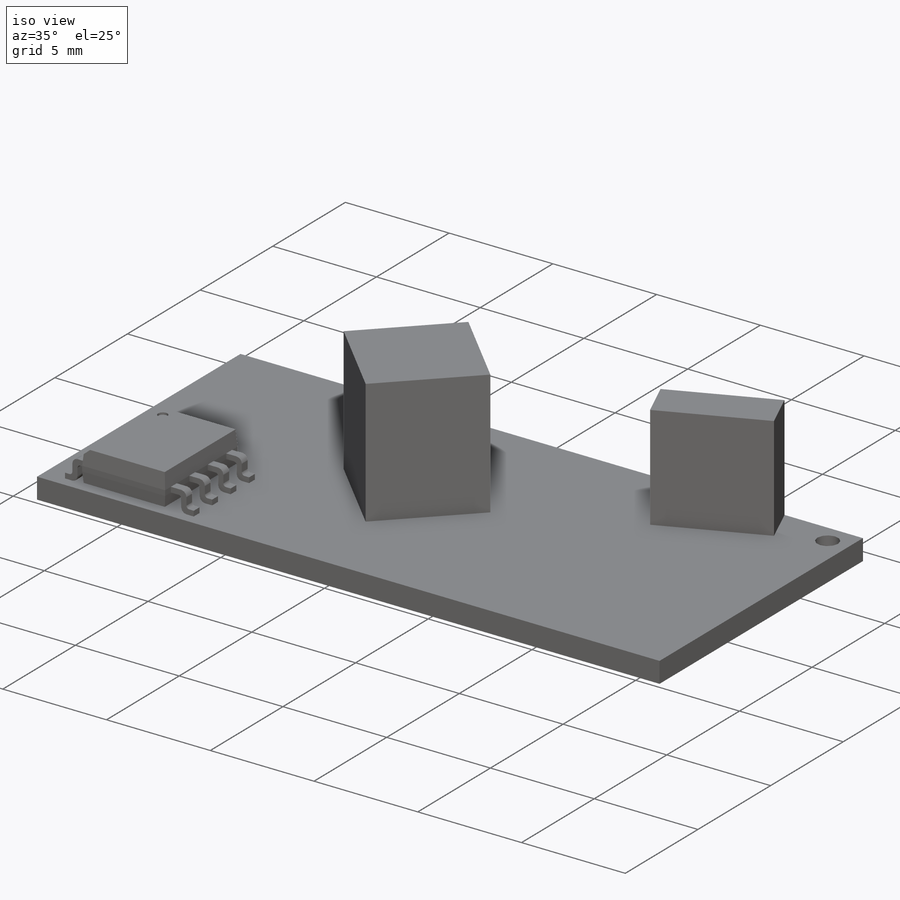
[diagram: iso view]
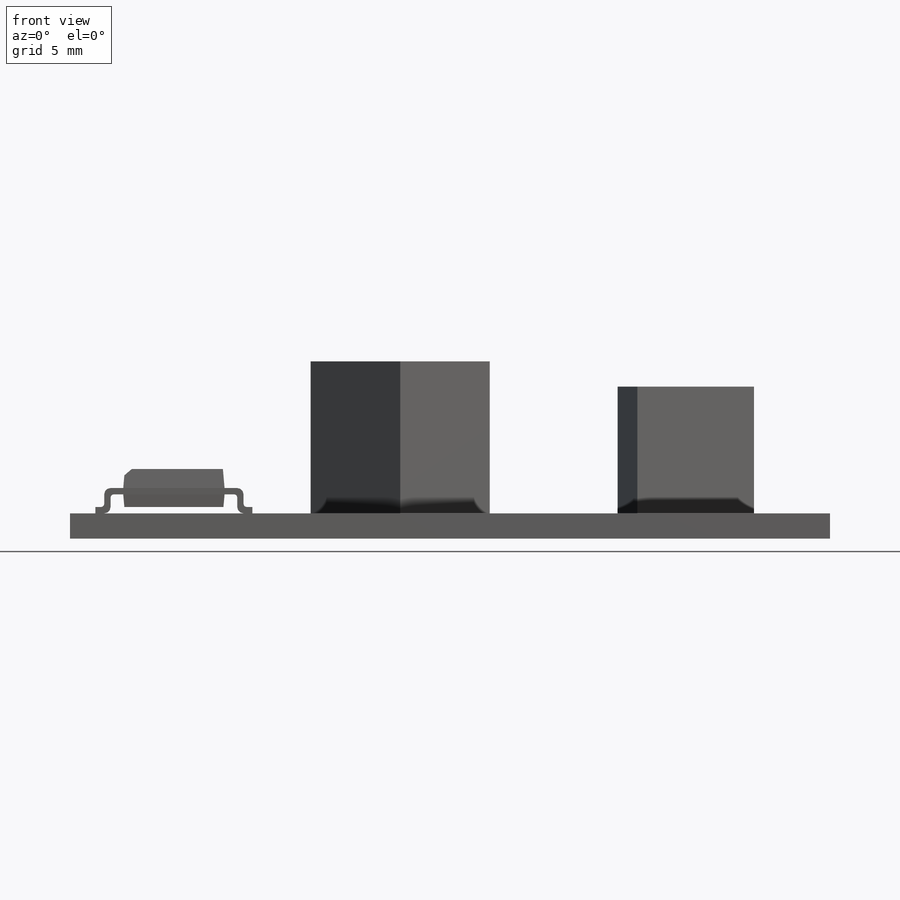
[diagram: front view]
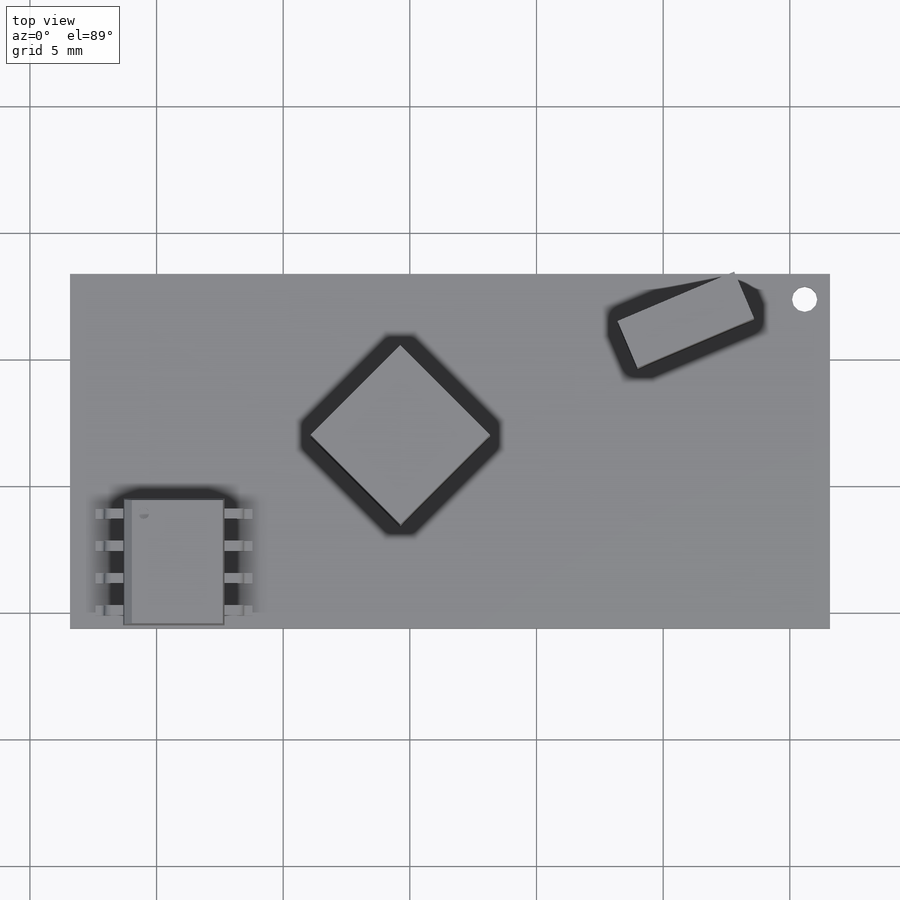
[diagram: top view]
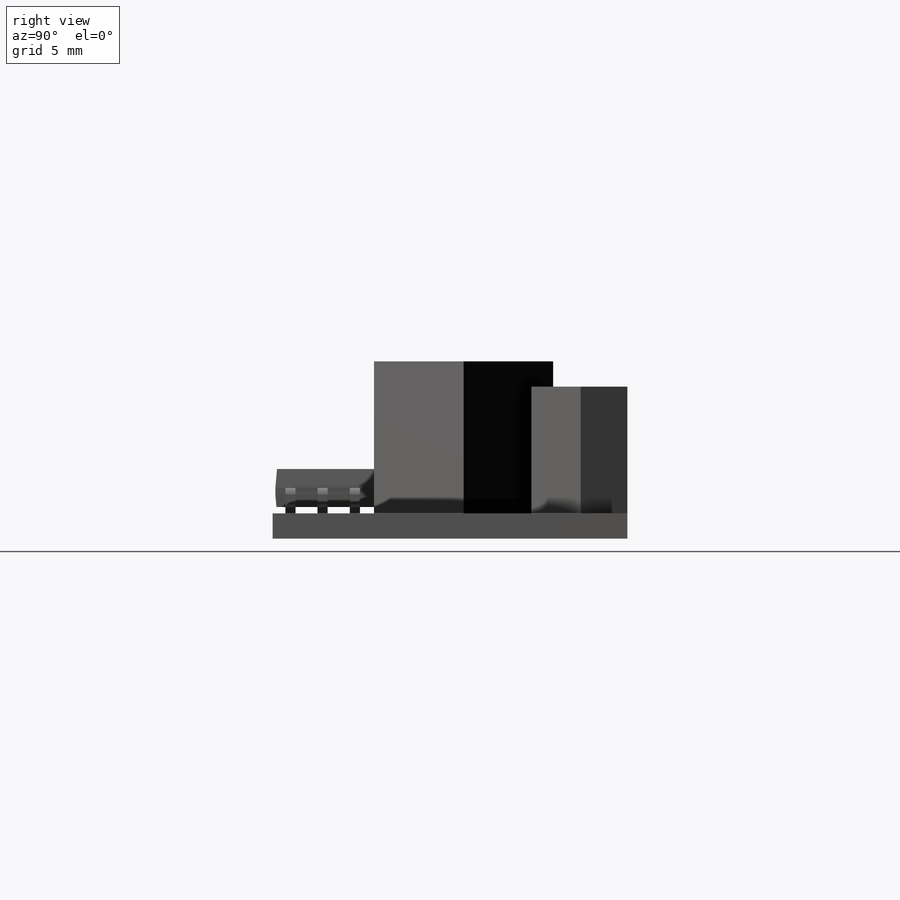
[diagram: right view]
SOLIDWORKS PART (.sldprt)
format: sldprt  version: not decoded by parser v0  size: 413,184 bytes
history: native  units: mm
features: sketch x5, plane x3, extrude x3, material x1, cut_extrude x1, move_body x1 + 2 further entries (+15 scaffold rows collapsed; 3 parser-record rows omitted)
feature tree (34):
  scaffold x15  (default folders/planes/origin — collapsed)
  material  "Материал <не указан>"
  plane  "Спереди"
  plane  "Сверху"
  plane  "Справа"
  sketch  "Эскиз1"  dims[c1.D1=~55.919252mm c1.D2=~97.071948mm c2.D1=14.0mm]
  extrude  "Бобышка-Вытянуть1"  Depth=1mm
  sketch  "Эскиз2"  dims[c1.D1=5.0mm c1.D2=5.0mm c2.D1=4.0mm]
  extrude  "Бобышка-Вытянуть2"  Depth=6mm
  sketch  "Эскиз3"  dims[c1.D1=1.3mm c1.D2=5.0mm c2.D1=2.0mm c2.D2=2.0mm c3.D1=1.0mm]
  extrude  "Бобышка-Вытянуть3"  Depth=5mm
  cut_extrude  "Вырез-Вытянуть1"  [1 undecoded]
  sketch  "Эскиз3<4>"
  sketch  "Эскиз5"  dims[c1.D1=1.14mm c1.D2=1.0mm c2.D1=0.5mm]
  "SO8"
  parser-record x3  (decoder bookkeeping rows leaked as tree rows — omitted from the tree; the rows remain in map.json)
  move_body  "Тело-Переместить/Копировать2"
  "Совпадение2"
decode coverage: 7 of 10 modeling features carry decoded parameters; 2 rows unclassified (native names shown)
note: ~ marks probable driven/reference dimensions
note: 1 parameter value undecoded
note: suppression state not decoded; provenance and decode notes live in map.json
